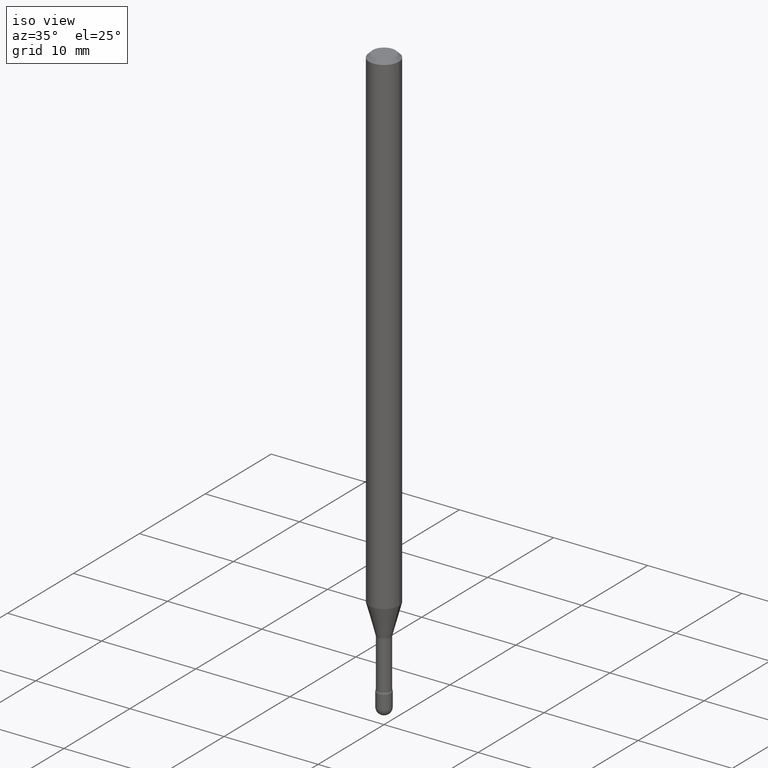
[diagram: clean part render]
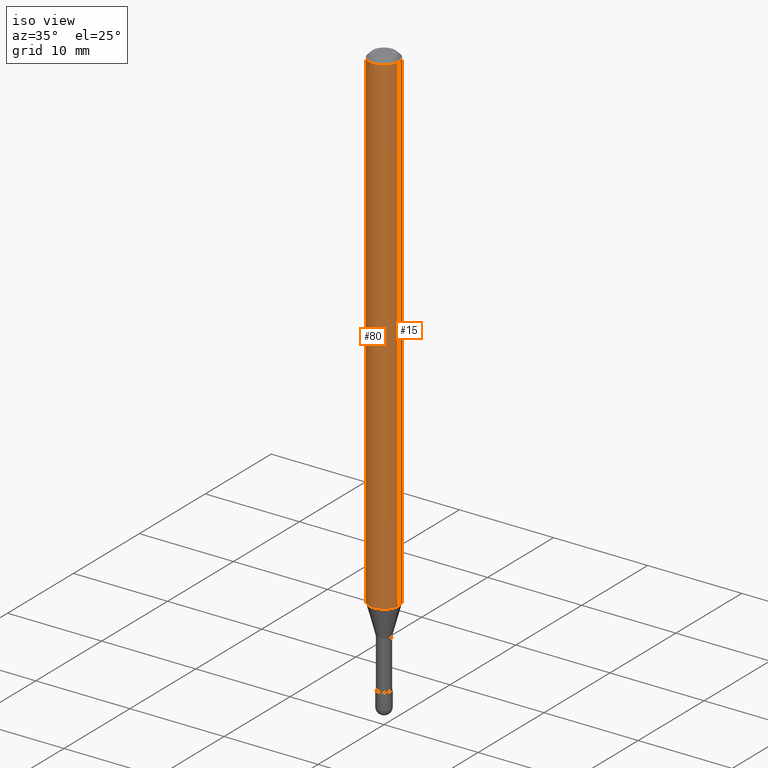
[diagram: same view with one multi-face feature highlighted, each face labeled with its STEP entity id]
A machine part, iso view. The highlighted faces form ONE feature: a constant-radius fillet chain: 2 tangent blend faces with common blend radius 1.5875 mm. The faces share edges in the B-rep.
Their STEP definitions:
[1] entity #80 (Cylinder):
#19 = VERTEX_POINT ( 'NONE', #414 ) ;
#21 = CARTESIAN_POINT ( 'NONE',  ( 0.06250000000000000000, -4.888073874380391431E-16, -0.01500000000000008271 ) ) ;
#28 = EDGE_CURVE ( 'NONE', #59, #19, #385, .T. ) ;
#36 = AXIS2_PLACEMENT_3D ( 'NONE', #503, #454, #552 ) ;
#48 = ORIENTED_EDGE ( 'NONE', *, *, #431, .F. ) ;
#59 = VERTEX_POINT ( 'NONE', #547 ) ;
#70 = DIRECTION ( 'NONE',  ( -2.445468806185136597E-29, 3.491481338843145583E-15, 1.000000000000000000 ) ) ;
#73 = VERTEX_POINT ( 'NONE', #287 ) ;
#80 = ADVANCED_FACE ( 'NONE', ( #501 ), #550, .T. ) ;
#105 = CARTESIAN_POINT ( 'NONE',  ( 3.668203209277725232E-31, -5.237222008264747365E-17, -0.01500000000000008271 ) ) ;
#114 = DIRECTION ( 'NONE',  ( 1.000000000000000000, -6.982962677686266711E-15, 0.000000000000000000 ) ) ;
#123 = DIRECTION ( 'NONE',  ( -2.445468806185136877E-29, 3.491481338843145188E-15, 1.000000000000000000 ) ) ;
#145 = AXIS2_PLACEMENT_3D ( 'NONE', #105, #539, #114 ) ;
#152 = EDGE_CURVE ( 'NONE', #19, #366, #221, .T. ) ;
#158 = DIRECTION ( 'NONE',  ( 1.000000000000000000, -6.982962677686262766E-15, 0.000000000000000000 ) ) ;
#173 = CARTESIAN_POINT ( 'NONE',  ( 0.06250000000000000000, -4.364351673553899931E-16, 4.780733988912490708E-16 ) ) ;
#199 = CARTESIAN_POINT ( 'NONE',  ( -0.06250000000000000000, 4.440892098500642925E-16, 4.780733988912429571E-16 ) ) ;
#221 = LINE ( 'NONE', #173, #435 ) ;
#277 = ORIENTED_EDGE ( 'NONE', *, *, #491, .F. ) ;
#287 = CARTESIAN_POINT ( 'NONE',  ( -0.06250000000000000000, -3.199255257302084965E-15, -0.01500000000000008271 ) ) ;
#289 = CARTESIAN_POINT ( 'NONE',  ( 5.066988519135135927E-29, -7.234316714221647689E-15, -2.071990657300387895 ) ) ;
#328 = LINE ( 'NONE', #199, #496 ) ;
#348 = CIRCLE ( 'NONE', #145, 0.06250000000000000000 ) ;
#366 = VERTEX_POINT ( 'NONE', #21 ) ;
#385 = CIRCLE ( 'NONE', #450, 0.06250000000000000000 ) ;
#414 = CARTESIAN_POINT ( 'NONE',  ( 0.06250000000000001388, -7.670751881577039359E-15, -2.071990657300387895 ) ) ;
#419 = ORIENTED_EDGE ( 'NONE', *, *, #28, .T. ) ;
#423 = EDGE_LOOP ( 'NONE', ( #277, #419, #486, #48 ) ) ;
#431 = EDGE_CURVE ( 'NONE', #73, #366, #348, .T. ) ;
#435 = VECTOR ( 'NONE', #123, 39.37007874015748143 ) ;
#450 = AXIS2_PLACEMENT_3D ( 'NONE', #289, #70, #158 ) ;
#454 = DIRECTION ( 'NONE',  ( -2.445468806185136597E-29, 3.491481338843145583E-15, 1.000000000000000000 ) ) ;
#486 = ORIENTED_EDGE ( 'NONE', *, *, #152, .T. ) ;
#491 = EDGE_CURVE ( 'NONE', #59, #73, #328, .T. ) ;
#493 = DIRECTION ( 'NONE',  ( -2.445468806185136877E-29, 3.491481338843145188E-15, 1.000000000000000000 ) ) ;
#496 = VECTOR ( 'NONE', #493, 39.37007874015748143 ) ;
#501 = FACE_OUTER_BOUND ( 'NONE', #423, .T. ) ;
#503 = CARTESIAN_POINT ( 'NONE',  ( -1.169113584055446105E-44, 1.669184350826100908E-30, 4.780733988912460139E-16 ) ) ;
#539 = DIRECTION ( 'NONE',  ( -2.445468806185136597E-29, 3.491481338843145583E-15, 1.000000000000000000 ) ) ;
#547 = CARTESIAN_POINT ( 'NONE',  ( -0.06250000000000001388, -6.790227504371585073E-15, -2.071990657300387895 ) ) ;
#550 = CYLINDRICAL_SURFACE ( 'NONE', #36, 0.06250000000000000000 ) ;
#552 = DIRECTION ( 'NONE',  ( 1.000000000000000000, -6.982962677686266711E-15, 4.852736867747366207E-29 ) ) ;
[2] entity #15 (Cylinder):
#15 = ADVANCED_FACE ( 'NONE', ( #161 ), #512, .T. ) ;
#19 = VERTEX_POINT ( 'NONE', #414 ) ;
#21 = CARTESIAN_POINT ( 'NONE',  ( 0.06250000000000000000, -4.888073874380391431E-16, -0.01500000000000008271 ) ) ;
#23 = ORIENTED_EDGE ( 'NONE', *, *, #491, .T. ) ;
#30 = CARTESIAN_POINT ( 'NONE',  ( 5.066988519135135927E-29, -7.234316714221647689E-15, -2.071990657300387895 ) ) ;
#40 = DIRECTION ( 'NONE',  ( -2.445468806185136597E-29, 3.491481338843145583E-15, 1.000000000000000000 ) ) ;
#59 = VERTEX_POINT ( 'NONE', #547 ) ;
#73 = VERTEX_POINT ( 'NONE', #287 ) ;
#79 = CARTESIAN_POINT ( 'NONE',  ( -1.169113584055446105E-44, 1.669184350826100908E-30, 4.780733988912460139E-16 ) ) ;
#83 = CARTESIAN_POINT ( 'NONE',  ( 3.668203209277725232E-31, -5.237222008264747365E-17, -0.01500000000000008271 ) ) ;
#100 = DIRECTION ( 'NONE',  ( -2.445468806185136597E-29, 3.491481338843145583E-15, 1.000000000000000000 ) ) ;
#113 = ORIENTED_EDGE ( 'NONE', *, *, #138, .F. ) ;
#118 = AXIS2_PLACEMENT_3D ( 'NONE', #83, #40, #126 ) ;
#123 = DIRECTION ( 'NONE',  ( -2.445468806185136877E-29, 3.491481338843145188E-15, 1.000000000000000000 ) ) ;
#126 = DIRECTION ( 'NONE',  ( 1.000000000000000000, -6.982962677686266711E-15, 0.000000000000000000 ) ) ;
#138 = EDGE_CURVE ( 'NONE', #366, #73, #364, .T. ) ;
#146 = EDGE_LOOP ( 'NONE', ( #521, #23, #113, #202 ) ) ;
#152 = EDGE_CURVE ( 'NONE', #19, #366, #221, .T. ) ;
#156 = AXIS2_PLACEMENT_3D ( 'NONE', #79, #370, #417 ) ;
#161 = FACE_OUTER_BOUND ( 'NONE', #146, .T. ) ;
#173 = CARTESIAN_POINT ( 'NONE',  ( 0.06250000000000000000, -4.364351673553899931E-16, 4.780733988912490708E-16 ) ) ;
#199 = CARTESIAN_POINT ( 'NONE',  ( -0.06250000000000000000, 4.440892098500642925E-16, 4.780733988912429571E-16 ) ) ;
#202 = ORIENTED_EDGE ( 'NONE', *, *, #152, .F. ) ;
#209 = DIRECTION ( 'NONE',  ( 1.000000000000000000, -6.982962677686262766E-15, 0.000000000000000000 ) ) ;
#221 = LINE ( 'NONE', #173, #435 ) ;
#287 = CARTESIAN_POINT ( 'NONE',  ( -0.06250000000000000000, -3.199255257302084965E-15, -0.01500000000000008271 ) ) ;
#327 = CIRCLE ( 'NONE', #462, 0.06250000000000000000 ) ;
#328 = LINE ( 'NONE', #199, #496 ) ;
#364 = CIRCLE ( 'NONE', #118, 0.06250000000000000000 ) ;
#366 = VERTEX_POINT ( 'NONE', #21 ) ;
#370 = DIRECTION ( 'NONE',  ( -2.445468806185136597E-29, 3.491481338843145583E-15, 1.000000000000000000 ) ) ;
#414 = CARTESIAN_POINT ( 'NONE',  ( 0.06250000000000001388, -7.670751881577039359E-15, -2.071990657300387895 ) ) ;
#417 = DIRECTION ( 'NONE',  ( 1.000000000000000000, -6.982962677686266711E-15, 4.852736867747366207E-29 ) ) ;
#435 = VECTOR ( 'NONE', #123, 39.37007874015748143 ) ;
#445 = EDGE_CURVE ( 'NONE', #19, #59, #327, .T. ) ;
#462 = AXIS2_PLACEMENT_3D ( 'NONE', #30, #100, #209 ) ;
#491 = EDGE_CURVE ( 'NONE', #59, #73, #328, .T. ) ;
#493 = DIRECTION ( 'NONE',  ( -2.445468806185136877E-29, 3.491481338843145188E-15, 1.000000000000000000 ) ) ;
#496 = VECTOR ( 'NONE', #493, 39.37007874015748143 ) ;
#512 = CYLINDRICAL_SURFACE ( 'NONE', #156, 0.06250000000000000000 ) ;
#521 = ORIENTED_EDGE ( 'NONE', *, *, #445, .T. ) ;
#547 = CARTESIAN_POINT ( 'NONE',  ( -0.06250000000000001388, -6.790227504371585073E-15, -2.071990657300387895 ) ) ;